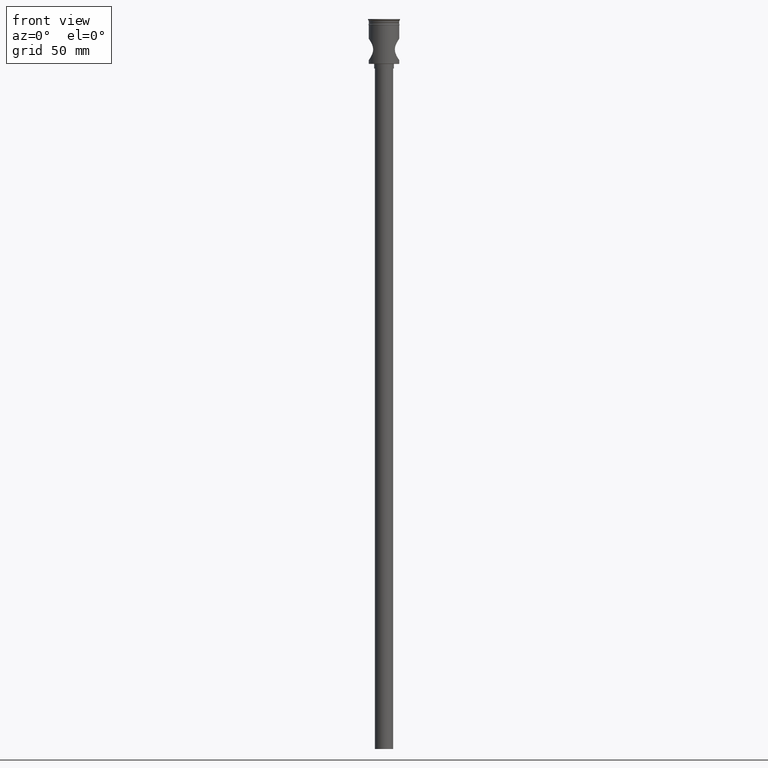
[diagram: clean part render]
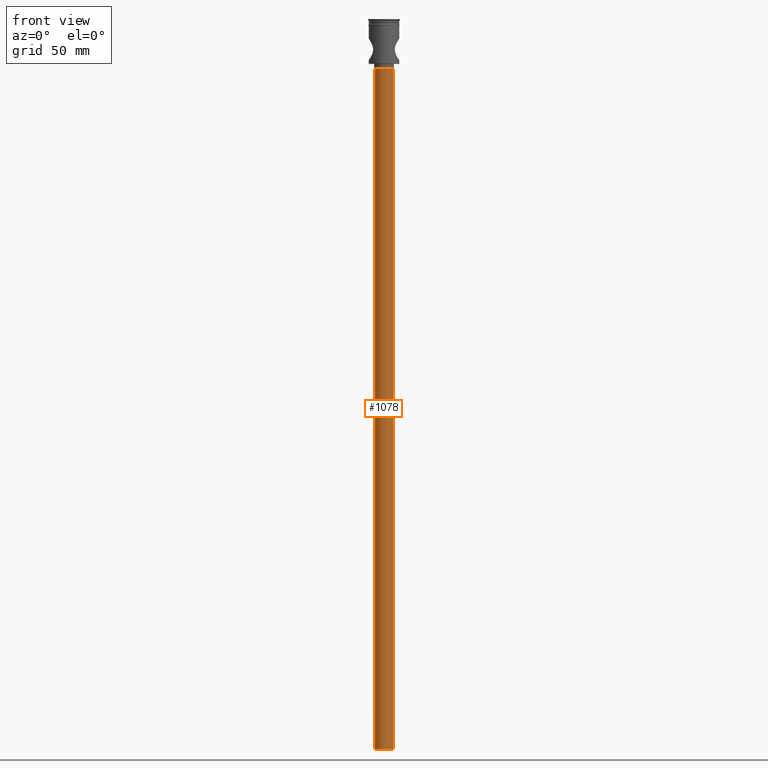
[diagram: same view with one face highlighted and labeled with its STEP entity id]
A machine part, front view. The second image highlights one B-rep face of the part: STEP entity #1078.
In plain terms, the highlighted cylindrical surface (edge-blend (fillet) strip) has radius 6 mm, axis along (-0, -0, 1).
Its self-contained STEP definition (entity closure, byte-faithful):
#87 = DIRECTION ( 'NONE',  ( -1.000000000000000000, 0.000000000000000000, 0.000000000000000000 ) ) ;
#91 = VERTEX_POINT ( 'NONE', #792 ) ;
#94 = DIRECTION ( 'NONE',  ( -0.000000000000000000, -0.000000000000000000, 1.000000000000000000 ) ) ;
#316 = VERTEX_POINT ( 'NONE', #655 ) ;
#340 = DIRECTION ( 'NONE',  ( -0.000000000000000000, -0.000000000000000000, 1.000000000000000000 ) ) ;
#426 = CARTESIAN_POINT ( 'NONE',  ( 6.000000000000000888, 0.000000000000000000, -479.5000000000000568 ) ) ;
#436 = CARTESIAN_POINT ( 'NONE',  ( -6.000000000000000888, 7.347880794884120722E-16, -479.5000000000000568 ) ) ;
#443 = ORIENTED_EDGE ( 'NONE', *, *, #826, .F. ) ;
#448 = ORIENTED_EDGE ( 'NONE', *, *, #939, .T. ) ;
#472 = DIRECTION ( 'NONE',  ( 1.000000000000000000, 0.000000000000000000, 0.000000000000000000 ) ) ;
#484 = DIRECTION ( 'NONE',  ( 0.000000000000000000, 0.000000000000000000, -1.000000000000000000 ) ) ;
#565 = ORIENTED_EDGE ( 'NONE', *, *, #902, .T. ) ;
#588 = CYLINDRICAL_SURFACE ( 'NONE', #838, 6.000000000000000888 ) ;
#655 = CARTESIAN_POINT ( 'NONE',  ( -6.000000000000000888, 7.347880794884120722E-16, -479.5000000000000568 ) ) ;
#656 = CARTESIAN_POINT ( 'NONE',  ( 0.000000000000000000, 0.000000000000000000, -32.50000000000000000 ) ) ;
#662 = AXIS2_PLACEMENT_3D ( 'NONE', #1230, #484, #1466 ) ;
#689 = VECTOR ( 'NONE', #1270, 1000.000000000000000 ) ;
#755 = EDGE_CURVE ( 'NONE', #1167, #316, #814, .T. ) ;
#792 = CARTESIAN_POINT ( 'NONE',  ( -6.000000000000000888, 7.347880794884120722E-16, -32.50000000000000000 ) ) ;
#814 = CIRCLE ( 'NONE', #662, 6.000000000000000888 ) ;
#826 = EDGE_CURVE ( 'NONE', #316, #91, #1362, .T. ) ;
#838 = AXIS2_PLACEMENT_3D ( 'NONE', #1410, #340, #472 ) ;
#866 = CIRCLE ( 'NONE', #1427, 6.000000000000000888 ) ;
#902 = EDGE_CURVE ( 'NONE', #1148, #91, #866, .T. ) ;
#939 = EDGE_CURVE ( 'NONE', #1167, #1148, #1019, .T. ) ;
#989 = CARTESIAN_POINT ( 'NONE',  ( 6.000000000000000888, 0.000000000000000000, -32.50000000000000000 ) ) ;
#1019 = LINE ( 'NONE', #426, #1328 ) ;
#1038 = ORIENTED_EDGE ( 'NONE', *, *, #755, .F. ) ;
#1078 = ADVANCED_FACE ( 'NONE', ( #1191 ), #588, .T. ) ;
#1136 = DIRECTION ( 'NONE',  ( 0.000000000000000000, 0.000000000000000000, -1.000000000000000000 ) ) ;
#1148 = VERTEX_POINT ( 'NONE', #989 ) ;
#1167 = VERTEX_POINT ( 'NONE', #1436 ) ;
#1173 = EDGE_LOOP ( 'NONE', ( #443, #1038, #448, #565 ) ) ;
#1191 = FACE_OUTER_BOUND ( 'NONE', #1173, .T. ) ;
#1230 = CARTESIAN_POINT ( 'NONE',  ( 0.000000000000000000, 0.000000000000000000, -479.5000000000000568 ) ) ;
#1270 = DIRECTION ( 'NONE',  ( -0.000000000000000000, -0.000000000000000000, 1.000000000000000000 ) ) ;
#1328 = VECTOR ( 'NONE', #94, 1000.000000000000000 ) ;
#1362 = LINE ( 'NONE', #436, #689 ) ;
#1410 = CARTESIAN_POINT ( 'NONE',  ( 0.000000000000000000, 0.000000000000000000, -479.5000000000000568 ) ) ;
#1427 = AXIS2_PLACEMENT_3D ( 'NONE', #656, #1136, #87 ) ;
#1436 = CARTESIAN_POINT ( 'NONE',  ( 6.000000000000000888, 0.000000000000000000, -479.5000000000000568 ) ) ;
#1466 = DIRECTION ( 'NONE',  ( -1.000000000000000000, 0.000000000000000000, 0.000000000000000000 ) ) ;